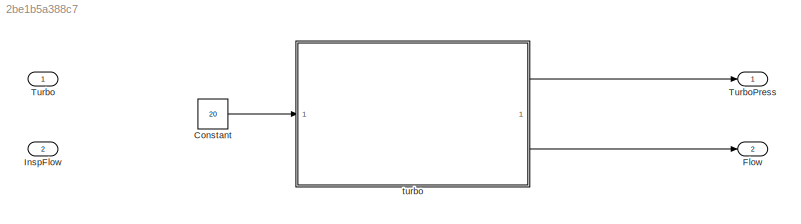
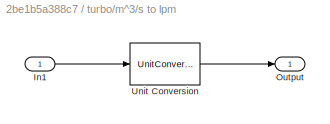
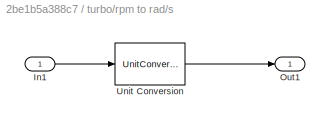
MODEL slx_2be1b5a388c7
KIND model
CONFIG AbsTol = 1e-3
CONFIG EnableMultiTasking = off
CONFIG FixedStep = auto
CONFIG MaxStep = auto
CONFIG MinStep = auto
CONFIG RelTol = 1e-3
CONFIG SampleTimeConstraint = Unconstrained
CONFIG SolverName = VariableStepAuto
CONFIG StartTime = 0.0
CONFIG StopTime = 10.0
WORKSPACE source: mxarray member
WORKSPACE Fan: object (value not decoded)
WORKSPACE Pipe: object (value not decoded)
BLOCK [Constant] Constant
  Value = 20
BLOCK [Outport] Flow
  Port = 2
BLOCK [Inport] InspFlow
  Port = 2
BLOCK [Inport] Turbo
BLOCK [Outport] TurboPress
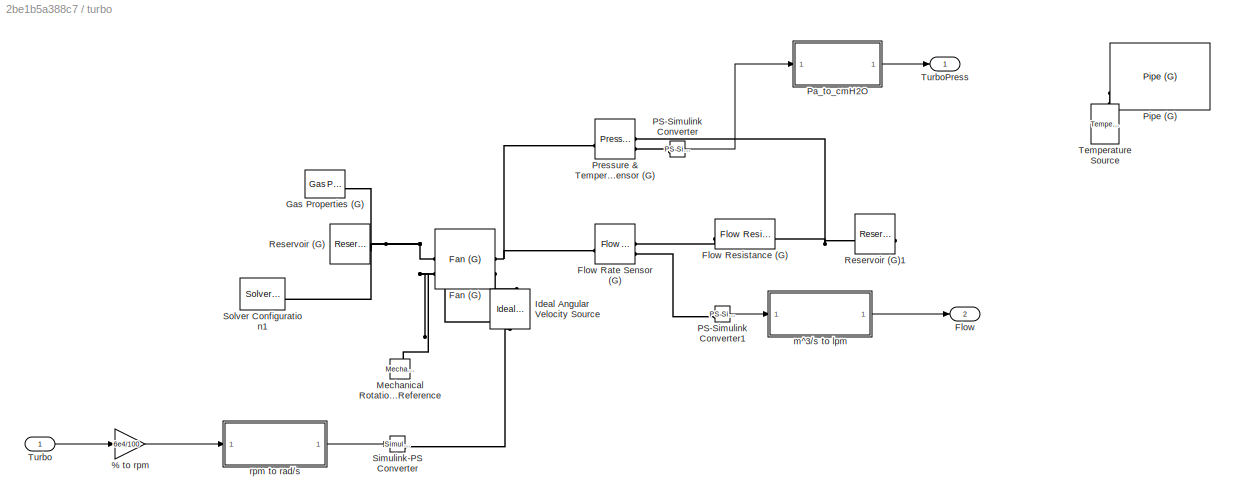
BLOCK [SubSystem] turbo
BLOCK [Gain] turbo/% to rpm
  Gain = 6e4/100
BLOCK [Reference] turbo/Fan (G)  REF=SimscapeFluids_lib/Gas/Turbomachinery/Fan (G)
  SourceBlock = SimscapeFluids_lib/Gas/Turbomachinery/Fan (G)
  SourceType = Fan (G)
BLOCK [Outport] turbo/Flow
  Port = 2
BLOCK [Reference] turbo/Flow Rate Sensor (G)  REF=fl_lib/Gas/Sensors/Flow Rate Sensor (G)
  SourceBlock = fl_lib/Gas/Sensors/Flow Rate Sensor (G)
  SourceType = Flow Rate Sensor (G)
BLOCK [Reference] turbo/Flow Resistance (G)  REF=fl_lib/Gas/Elements/Flow Resistance (G)
  SourceBlock = fl_lib/Gas/Elements/Flow Resistance (G)
  SourceType = Flow Resistance (G)
BLOCK [Reference] turbo/Gas Properties (G)  REF=fl_lib/Gas/Utilities/Gas Properties (G)
  SourceBlock = fl_lib/Gas/Utilities/Gas Properties (G)
  SourceType = Gas Properties (G)
BLOCK [Reference] turbo/Ideal Angular Velocity Source  REF=fl_lib/Mechanical/Mechanical Sources/Ideal Angular
Velocity Source
  NameLocation = right
  SourceBlock = fl_lib/Mechanical/Mechanical Sources/Ideal Angular\nVelocity Source
  SourceType = Ideal Angular\nVelocity Source
BLOCK [Reference] turbo/Mechanical Rotational Reference  REF=fl_lib/Mechanical/Rotational Elements/Mechanical
Rotational Reference
  NameLocation = right
  SourceBlock = fl_lib/Mechanical/Rotational Elements/Mechanical\nRotational Reference
  SourceType = Mechanical\nRotational Reference
BLOCK [Reference] turbo/PS-Simulink Converter  REF=nesl_utility/PS-Simulink
Converter
  SourceBlock = nesl_utility/PS-Simulink\nConverter
  SourceType = PS-Simulink\nConverter
BLOCK [Reference] turbo/PS-Simulink Converter1  REF=nesl_utility/PS-Simulink
Converter
  SourceBlock = nesl_utility/PS-Simulink\nConverter
  SourceType = PS-Simulink\nConverter
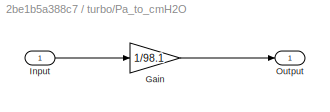
BLOCK [SubSystem] turbo/Pa_to_cmH2O
BLOCK [Gain] turbo/Pa_to_cmH2O/Gain
  Gain = 1/98.1
BLOCK [Inport] turbo/Pa_to_cmH2O/Input
BLOCK [Outport] turbo/Pa_to_cmH2O/Output
BLOCK [Reference] turbo/Pipe (G)  REF=fl_lib/Gas/Elements/Pipe (G)
  Commented = on
  SourceBlock = fl_lib/Gas/Elements/Pipe (G)
  SourceType = Pipe (G)
BLOCK [Reference] turbo/Pressure & Temperature Sensor (G)  REF=fl_lib/Gas/Sensors/Pressure &
Temperature Sensor
(G)
  SourceBlock = fl_lib/Gas/Sensors/Pressure &\nTemperature Sensor\n(G)
  SourceType = Pressure &\nTemperature Sensor\n(G)
BLOCK [Reference] turbo/Reservoir (G)  REF=fl_lib/Gas/Elements/Reservoir (G)
  SourceBlock = fl_lib/Gas/Elements/Reservoir (G)
  SourceType = Reservoir (G)
BLOCK [Reference] turbo/Reservoir (G)1  REF=fl_lib/Gas/Elements/Reservoir (G)
  NameLocation = top
  SourceBlock = fl_lib/Gas/Elements/Reservoir (G)
  SourceType = Reservoir (G)
BLOCK [Reference] turbo/Simulink-PS Converter  REF=nesl_utility/Simulink-PS
Converter
  SourceBlock = nesl_utility/Simulink-PS\nConverter
  SourceType = Simulink-PS\nConverter
BLOCK [Reference] turbo/Solver Configuration1  REF=nesl_utility/Solver
Configuration
  SourceBlock = nesl_utility/Solver\nConfiguration
  SourceType = Solver\nConfiguration
BLOCK [Reference] turbo/Temperature Source  REF=fl_lib/Thermal/Thermal Sources/Temperature Source
  Commented = on
  NameLocation = right
  SourceBlock = fl_lib/Thermal/Thermal Sources/Temperature Source
  SourceType = Temperature Source
BLOCK [Inport] turbo/Turbo
BLOCK [Outport] turbo/TurboPress
BLOCK [SubSystem] turbo/m^3//s to lpm 
BLOCK [Inport] turbo/m^3//s to lpm /In1
  Unit = m^3/s
BLOCK [Outport] turbo/m^3//s to lpm /Output
  Unit = lpm
BLOCK [UnitConversion] turbo/m^3//s to lpm /Unit Conversion
BLOCK [SubSystem] turbo/rpm to rad//s
BLOCK [Inport] turbo/rpm to rad//s/In1
  Unit = rpm
BLOCK [Outport] turbo/rpm to rad//s/Out1
  Unit = rad/s
BLOCK [UnitConversion] turbo/rpm to rad//s/Unit Conversion
LINE Constant:1 -> turbo:1
LINE turbo/% to rpm:1 -> turbo/rpm to rad//s:1
LINE turbo/PS-Simulink Converter1:1 -> turbo/m^3//s to lpm :1
LINE turbo/PS-Simulink Converter:1 -> turbo/Pa_to_cmH2O:1
LINE turbo/Pa_to_cmH2O/Gain:1 -> turbo/Pa_to_cmH2O/Output:1
LINE turbo/Pa_to_cmH2O/Input:1 -> turbo/Pa_to_cmH2O/Gain:1
LINE turbo/Pa_to_cmH2O:1 -> turbo/TurboPress:1
LINE turbo/Turbo:1 -> turbo/% to rpm:1
LINE turbo/m^3//s to lpm /In1:1 -> turbo/m^3//s to lpm /Unit Conversion:1
LINE turbo/m^3//s to lpm /Unit Conversion:1 -> turbo/m^3//s to lpm /Output:1
LINE turbo/m^3//s to lpm :1 -> turbo/Flow:1
LINE turbo/rpm to rad//s/In1:1 -> turbo/rpm to rad//s/Unit Conversion:1
LINE turbo/rpm to rad//s/Unit Conversion:1 -> turbo/rpm to rad//s/Out1:1
LINE turbo/rpm to rad//s:1 -> turbo/Simulink-PS Converter:1
LINE turbo:1 -> TurboPress:1
LINE turbo:2 -> Flow:1
PNET net1: turbo/Fan (G):LConn1 -- turbo/Gas Properties (G):RConn1 -- turbo/Reservoir (G):LConn1 -- turbo/Solver Configuration1:RConn1
PNET net2: turbo/Fan (G):LConn2 -- turbo/Ideal Angular Velocity Source:RConn2 -- turbo/Mechanical Rotational Reference:LConn1
PNET net3: turbo/Fan (G):RConn1 -- turbo/Flow Rate Sensor (G):LConn1 -- turbo/Pressure & Temperature Sensor (G):LConn1
PLINE turbo/Fan (G):RConn2 -- turbo/Ideal Angular Velocity Source:LConn1
PLINE turbo/Flow Rate Sensor (G):RConn1 -- turbo/Flow Resistance (G):LConn1
PLINE turbo/Flow Rate Sensor (G):RConn2 -- turbo/PS-Simulink Converter1:LConn1
PNET net4: turbo/Flow Resistance (G):RConn1 -- turbo/Pressure & Temperature Sensor (G):RConn1 -- turbo/Reservoir (G)1:LConn1
PLINE turbo/Ideal Angular Velocity Source:RConn1 -- turbo/Simulink-PS Converter:RConn1
PLINE turbo/PS-Simulink Converter:LConn1 -- turbo/Pressure & Temperature Sensor (G):RConn2
PLINE turbo/Pipe (G):LConn2 -- turbo/Temperature Source:LConn1
note: PNET lines group multi-terminal physical nets as a canonical sorted terminal list (undirected conserving connections); 2-terminal nets keep the pairwise PLINE form
